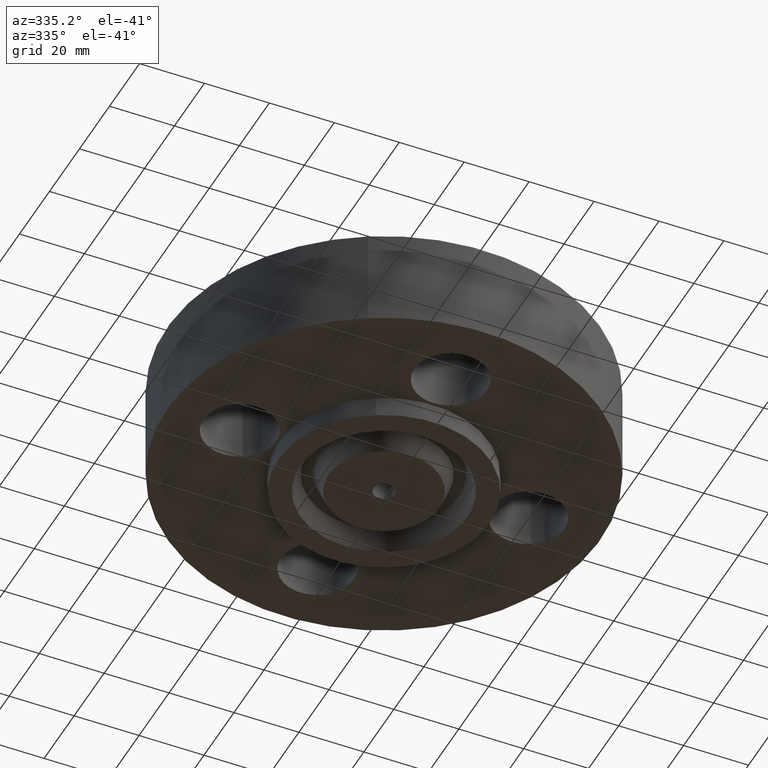
[diagram: clean part render]
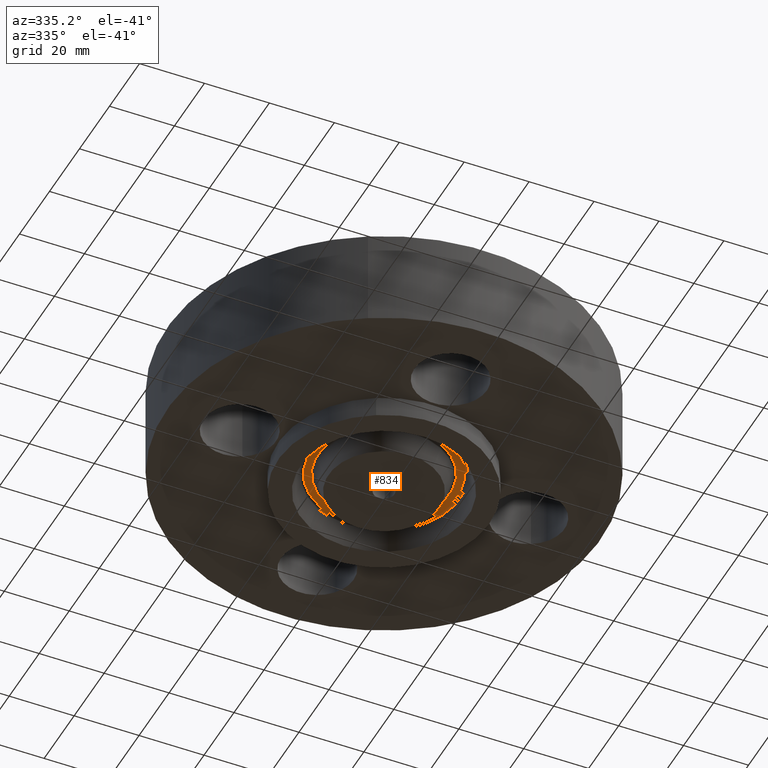
[diagram: same view with one face highlighted and labeled with its STEP entity id]
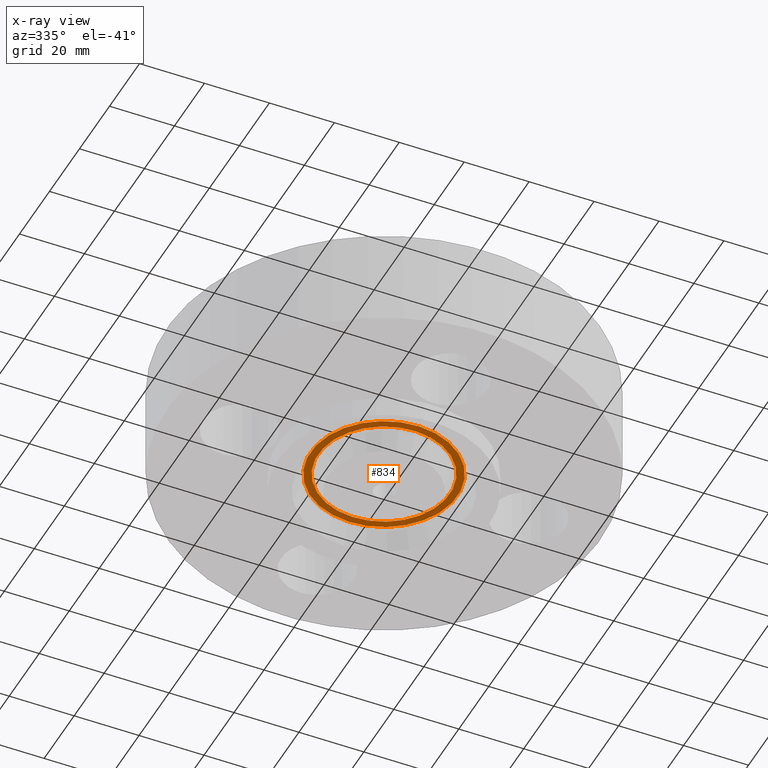
[diagram: x-ray of the same camera — body ghosted, the highlighted face saturated]
A machine part, auxiliary view. The second image highlights one B-rep face of the part: STEP entity #834.
The next image is the same camera in x-ray: the body ghosted, the highlighted face saturated — about 0% of this face is hidden behind the body in this view.
In plain terms, the highlighted planar face has unit normal (0, 0, -1).
Its self-contained STEP definition (entity closure, byte-faithful):
#484=AXIS2_PLACEMENT_3D('Plane Axis2P3D',#481,#482,#483) ;
#756=AXIS2_PLACEMENT_3D('Circle Axis2P3D',#754,#755,$) ;
#802=AXIS2_PLACEMENT_3D('Circle Axis2P3D',#800,#801,$) ;
#818=AXIS2_PLACEMENT_3D('Circle Axis2P3D',#816,#817,$) ;
#827=AXIS2_PLACEMENT_3D('Circle Axis2P3D',#825,#826,$) ;
#481=CARTESIAN_POINT('Axis2P3D Location',(0.,1.28150000001,0.)) ;
#751=CARTESIAN_POINT('Vertex',(-0.426383260285,0.780489322696,-5.68224382682E-017)) ;
#754=CARTESIAN_POINT('Axis2P3D Location',(0.,0.,-5.68224382682E-017)) ;
#758=CARTESIAN_POINT('Vertex',(0.426383260285,-0.780489322696,-5.68224382682E-017)) ;
#800=CARTESIAN_POINT('Axis2P3D Location',(0.,0.,-5.68224382682E-017)) ;
#816=CARTESIAN_POINT('Axis2P3D Location',(0.,0.,0.)) ;
#820=CARTESIAN_POINT('Vertex',(0.382887048882,-0.700870041781,6.55643518479E-017)) ;
#822=CARTESIAN_POINT('Vertex',(-0.382887048882,0.700870041781,6.55643518479E-017)) ;
#825=CARTESIAN_POINT('Axis2P3D Location',(0.,0.,0.)) ;
#482=DIRECTION('Axis2P3D Direction',(0.,0.,-0.0393700787402)) ;
#483=DIRECTION('Axis2P3D XDirection',(0.0393700787402,0.,0.)) ;
#755=DIRECTION('Axis2P3D Direction',(0.,0.,0.0393700787402)) ;
#801=DIRECTION('Axis2P3D Direction',(0.,0.,0.0393700787402)) ;
#817=DIRECTION('Axis2P3D Direction',(0.,0.,-0.0393700787402)) ;
#826=DIRECTION('Axis2P3D Direction',(0.,0.,-0.0393700787402)) ;
#813=ORIENTED_EDGE('',*,*,#760,.F.) ;
#814=ORIENTED_EDGE('',*,*,#804,.F.) ;
#831=ORIENTED_EDGE('',*,*,#824,.T.) ;
#832=ORIENTED_EDGE('',*,*,#829,.T.) ;
#833=FACE_BOUND('',#830,.T.) ;
#834=ADVANCED_FACE('PartBody',(#815,#833),#485,.T.) ;
#757=CIRCLE('generated circle',#756,0.889362843554) ;
#803=CIRCLE('generated circle',#802,0.889362843554) ;
#819=CIRCLE('generated circle',#818,0.798637156453) ;
#828=CIRCLE('generated circle',#827,0.798637156453) ;
#760=EDGE_CURVE('',#752,#759,#757,.T.) ;
#804=EDGE_CURVE('',#759,#752,#803,.T.) ;
#824=EDGE_CURVE('',#821,#823,#819,.F.) ;
#829=EDGE_CURVE('',#823,#821,#828,.F.) ;
#812=EDGE_LOOP('',(#813,#814)) ;
#830=EDGE_LOOP('',(#831,#832)) ;
#815=FACE_OUTER_BOUND('',#812,.T.) ;
#485=PLANE('',#484) ;
#752=VERTEX_POINT('',#751) ;
#759=VERTEX_POINT('',#758) ;
#821=VERTEX_POINT('',#820) ;
#823=VERTEX_POINT('',#822) ;